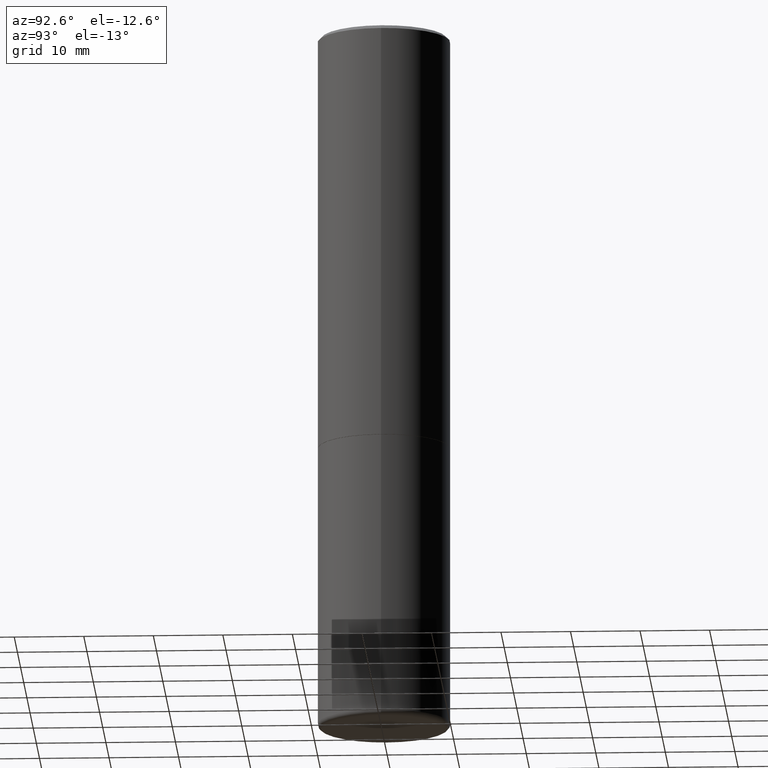
[diagram: clean part render]
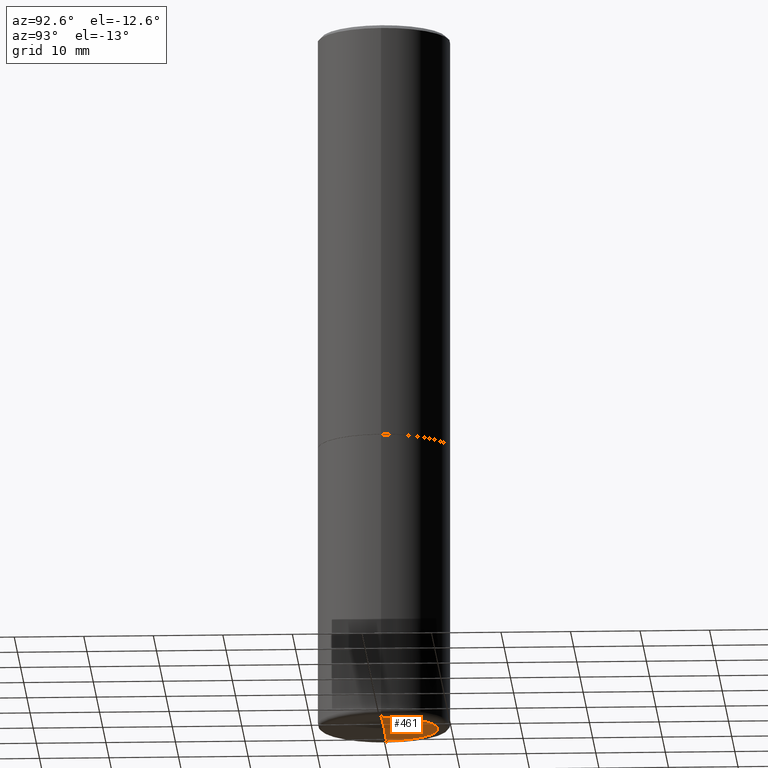
[diagram: same view with one face highlighted and labeled with its STEP entity id]
A machine part, auxiliary view. The second image highlights one B-rep face of the part: STEP entity #461.
In plain terms, the highlighted conical surface has half-angle 88 deg.
Its self-contained STEP definition (entity closure, byte-faithful):
#31 = VERTEX_POINT ( 'NONE', #478 ) ;
#63 = VERTEX_POINT ( 'NONE', #314 ) ;
#106 = CIRCLE ( 'NONE', #360, 0.3047407039350492619 ) ;
#131 = DIRECTION ( 'NONE',  ( 2.445468806185136597E-29, -3.491481338843145583E-15, -1.000000000000000000 ) ) ;
#174 = VECTOR ( 'NONE', #307, 39.37007874015748143 ) ;
#184 = VERTEX_POINT ( 'NONE', #454 ) ;
#191 = ORIENTED_EDGE ( 'NONE', *, *, #426, .F. ) ;
#200 = DIRECTION ( 'NONE',  ( -1.000000000000000000, 6.982962677686265133E-15, 0.000000000000000000 ) ) ;
#204 = FACE_OUTER_BOUND ( 'NONE', #484, .T. ) ;
#213 = CONICAL_SURFACE ( 'NONE', #384, 0.3047407039350492619, 1.535889741755010807 ) ;
#253 = CARTESIAN_POINT ( 'NONE',  ( 0.3047407039350492619, -1.605537963289119756E-14, -3.999650947105539256 ) ) ;
#296 = CARTESIAN_POINT ( 'NONE',  ( 9.781021626775434250E-29, -1.396470664370530441E-14, -3.999650947105539256 ) ) ;
#299 = DIRECTION ( 'NONE',  ( -2.445468806185136597E-29, 3.491481338843145583E-15, 1.000000000000000000 ) ) ;
#307 = DIRECTION ( 'NONE',  ( -0.9993908270190957621, 6.856857904024558837E-15, -0.03489949670250019204 ) ) ;
#314 = CARTESIAN_POINT ( 'NONE',  ( 0.3047407039350492619, -1.605537963289119756E-14, -3.999650947105539256 ) ) ;
#332 = EDGE_CURVE ( 'NONE', #31, #184, #458, .T. ) ;
#339 = EDGE_CURVE ( 'NONE', #31, #63, #340, .T. ) ;
#340 = LINE ( 'NONE', #253, #450 ) ;
#354 = ORIENTED_EDGE ( 'NONE', *, *, #332, .T. ) ;
#360 = AXIS2_PLACEMENT_3D ( 'NONE', #296, #299, #460 ) ;
#384 = AXIS2_PLACEMENT_3D ( 'NONE', #440, #131, #200 ) ;
#389 = ORIENTED_EDGE ( 'NONE', *, *, #339, .F. ) ;
#420 = CARTESIAN_POINT ( 'NONE',  ( -0.3047407039350492619, -1.183671368175501508E-14, -3.999650947105539256 ) ) ;
#426 = EDGE_CURVE ( 'NONE', #63, #184, #106, .T. ) ;
#440 = CARTESIAN_POINT ( 'NONE',  ( 9.781021626775434250E-29, -1.396470664370530441E-14, -3.999650947105539256 ) ) ;
#450 = VECTOR ( 'NONE', #472, 39.37007874015748143 ) ;
#454 = CARTESIAN_POINT ( 'NONE',  ( -0.3047407039350492619, -1.183671368175501508E-14, -3.999650947105539256 ) ) ;
#458 = LINE ( 'NONE', #420, #174 ) ;
#460 = DIRECTION ( 'NONE',  ( 1.000000000000000000, -6.982962677686265133E-15, 0.000000000000000000 ) ) ;
#461 = ADVANCED_FACE ( 'NONE', ( #204 ), #213, .F. ) ;
#472 = DIRECTION ( 'NONE',  ( 0.9993908270190957621, -6.978169709227539121E-15, -0.03489949670250019204 ) ) ;
#478 = CARTESIAN_POINT ( 'NONE',  ( 9.753116872605322365E-29, -1.393024421333557425E-14, -3.989009167228670716 ) ) ;
#484 = EDGE_LOOP ( 'NONE', ( #389, #354, #191 ) ) ;